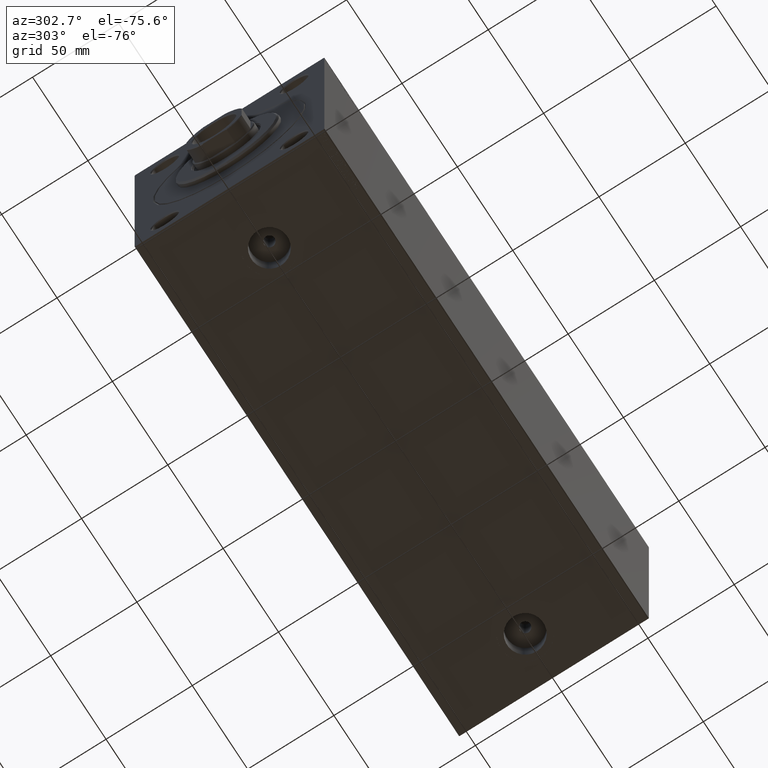
[diagram: clean part render]
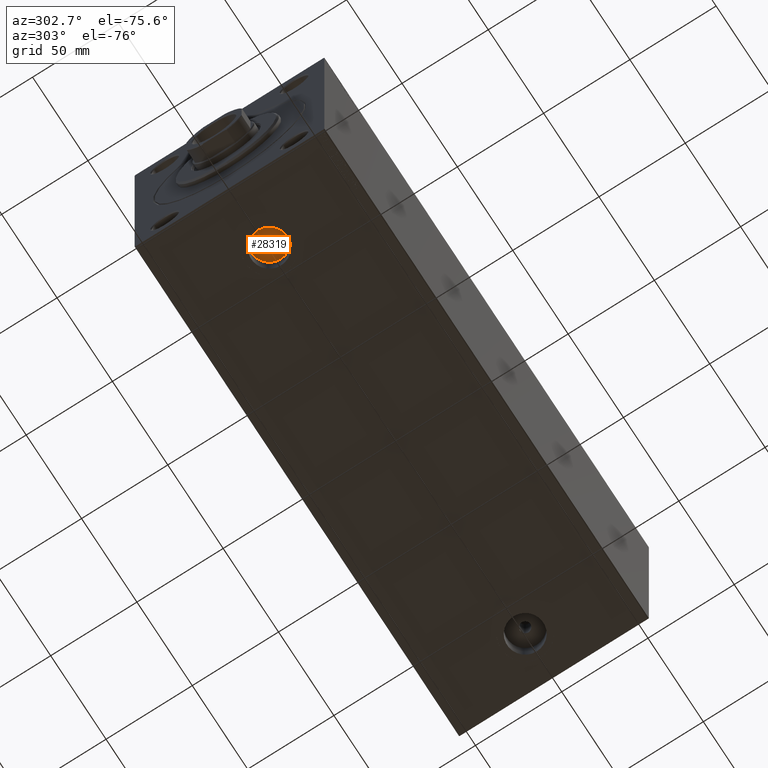
[diagram: same view with one face highlighted and labeled with its STEP entity id]
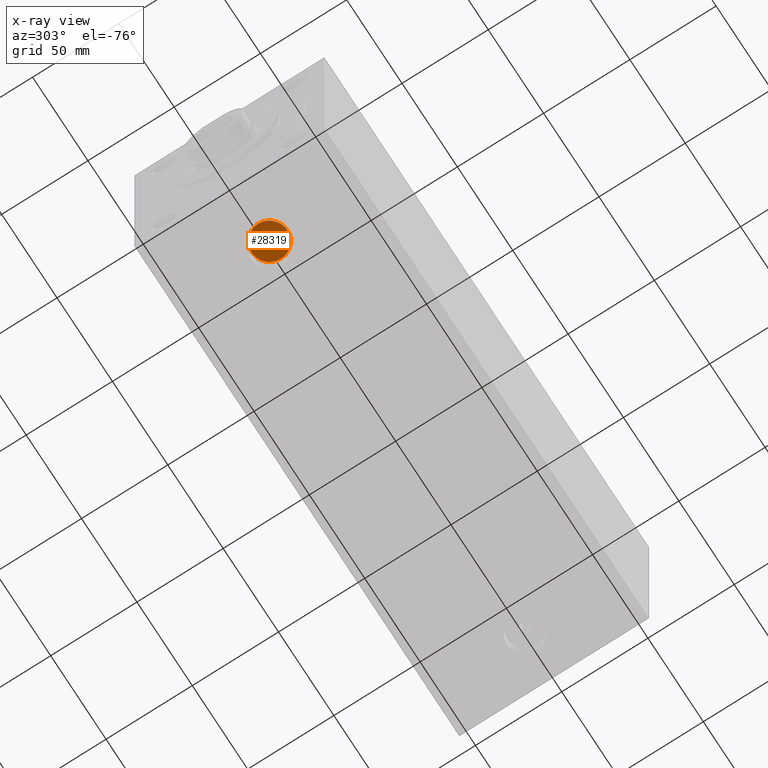
[diagram: x-ray of the same camera — body ghosted, the highlighted face saturated]
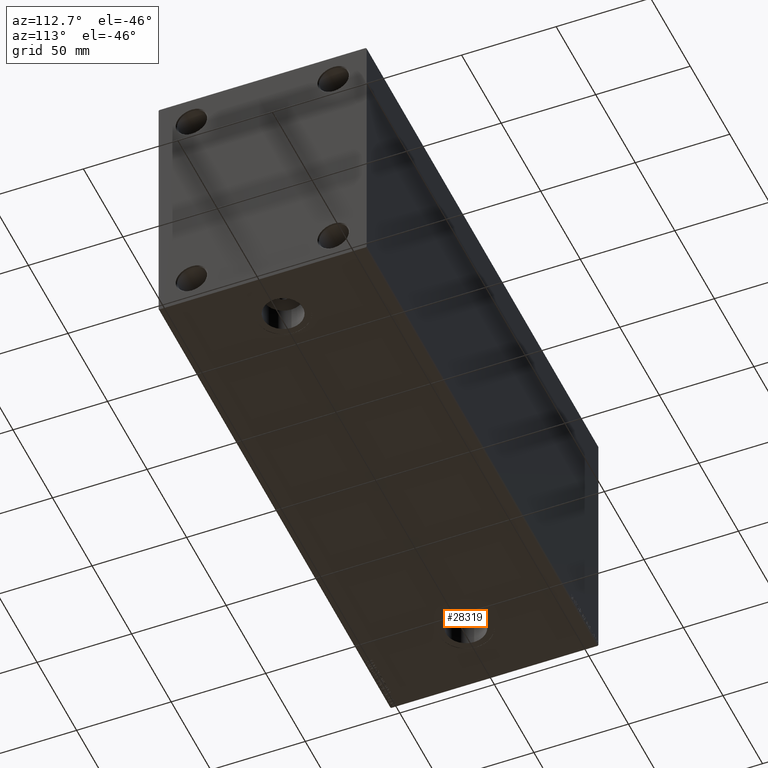
[diagram: same view with one face highlighted and labeled with its STEP entity id]
A machine part, auxiliary view. The second image highlights one B-rep face of the part: STEP entity #28319.
The next image is the same camera in x-ray: the body ghosted, the highlighted face saturated — about 0% of this face is hidden behind the body in this view.
A second angle (auxiliary view) of the same face is appended — the face is thin or edge-on in the first view.
In plain terms, the highlighted planar face has unit normal (0, 0, -1).
Its self-contained STEP definition (entity closure, byte-faithful):
#568 = CIRCLE ( 'NONE', #24152, 3.000000000000002665 ) ;
#1639 = EDGE_LOOP ( 'NONE', ( #31571, #15334 ) ) ;
#2374 = EDGE_CURVE ( 'NONE', #10228, #8421, #35223, .T. ) ;
#2824 = FACE_BOUND ( 'NONE', #1639, .T. ) ;
#2948 = DIRECTION ( 'NONE',  ( 0.000000000000000000, 0.000000000000000000, -1.000000000000000000 ) ) ;
#3735 = CARTESIAN_POINT ( 'NONE',  ( 36.00000000000000000, 4.206130763976431907E-15, -57.00000000000000000 ) ) ;
#4450 = DIRECTION ( 'NONE',  ( -1.000000000000000000, 0.000000000000000000, 0.000000000000000000 ) ) ;
#6748 = DIRECTION ( 'NONE',  ( 0.000000000000000000, 0.000000000000000000, -1.000000000000000000 ) ) ;
#8396 = VERTEX_POINT ( 'NONE', #12737 ) ;
#8421 = VERTEX_POINT ( 'NONE', #27082 ) ;
#10228 = VERTEX_POINT ( 'NONE', #42289 ) ;
#12389 = AXIS2_PLACEMENT_3D ( 'NONE', #20488, #2948, #17024 ) ;
#12737 = CARTESIAN_POINT ( 'NONE',  ( 39.00000000000000000, 4.573524803720637352E-15, -57.00000000000000000 ) ) ;
#12742 = PLANE ( 'NONE',  #14562 ) ;
#13524 = AXIS2_PLACEMENT_3D ( 'NONE', #21773, #39348, #4450 ) ;
#14095 = CARTESIAN_POINT ( 'NONE',  ( 32.99999999999999289, 4.206130763976431907E-15, -57.00000000000000000 ) ) ;
#14362 = DIRECTION ( 'NONE',  ( -1.000000000000000000, 0.000000000000000000, 0.000000000000000000 ) ) ;
#14562 = AXIS2_PLACEMENT_3D ( 'NONE', #3735, #17128, #27780 ) ;
#15334 = ORIENTED_EDGE ( 'NONE', *, *, #29285, .F. ) ;
#16904 = FACE_OUTER_BOUND ( 'NONE', #43477, .T. ) ;
#17024 = DIRECTION ( 'NONE',  ( -1.000000000000000000, 0.000000000000000000, 0.000000000000000000 ) ) ;
#17078 = ORIENTED_EDGE ( 'NONE', *, *, #2374, .T. ) ;
#17128 = DIRECTION ( 'NONE',  ( 0.000000000000000000, 0.000000000000000000, -1.000000000000000000 ) ) ;
#18221 = EDGE_CURVE ( 'NONE', #8421, #10228, #33450, .T. ) ;
#20464 = ORIENTED_EDGE ( 'NONE', *, *, #18221, .T. ) ;
#20488 = CARTESIAN_POINT ( 'NONE',  ( 36.00000000000000000, 4.206130763976431907E-15, -57.00000000000000000 ) ) ;
#21570 = DIRECTION ( 'NONE',  ( 0.000000000000000000, 0.000000000000000000, -1.000000000000000000 ) ) ;
#21773 = CARTESIAN_POINT ( 'NONE',  ( 36.00000000000000000, 4.206130763976431907E-15, -57.00000000000000000 ) ) ;
#24152 = AXIS2_PLACEMENT_3D ( 'NONE', #34928, #6748, #14362 ) ;
#24906 = AXIS2_PLACEMENT_3D ( 'NONE', #28076, #21570, #38904 ) ;
#27082 = CARTESIAN_POINT ( 'NONE',  ( 25.51999999999999602, 4.206130763976431907E-15, -57.00000000000000000 ) ) ;
#27780 = DIRECTION ( 'NONE',  ( -1.000000000000000000, 0.000000000000000000, -0.000000000000000000 ) ) ;
#28076 = CARTESIAN_POINT ( 'NONE',  ( 36.00000000000000000, 4.206130763976431907E-15, -57.00000000000000000 ) ) ;
#28319 = ADVANCED_FACE ( 'NONE', ( #2824, #16904 ), #12742, .T. ) ;
#29285 = EDGE_CURVE ( 'NONE', #8396, #34211, #568, .T. ) ;
#29381 = CIRCLE ( 'NONE', #12389, 3.000000000000002665 ) ;
#30741 = EDGE_CURVE ( 'NONE', #34211, #8396, #29381, .T. ) ;
#31571 = ORIENTED_EDGE ( 'NONE', *, *, #30741, .F. ) ;
#33450 = CIRCLE ( 'NONE', #13524, 10.48000000000000043 ) ;
#34211 = VERTEX_POINT ( 'NONE', #14095 ) ;
#34928 = CARTESIAN_POINT ( 'NONE',  ( 36.00000000000000000, 4.206130763976431907E-15, -57.00000000000000000 ) ) ;
#35223 = CIRCLE ( 'NONE', #24906, 10.48000000000000043 ) ;
#38904 = DIRECTION ( 'NONE',  ( -1.000000000000000000, 0.000000000000000000, 0.000000000000000000 ) ) ;
#39348 = DIRECTION ( 'NONE',  ( 0.000000000000000000, 0.000000000000000000, -1.000000000000000000 ) ) ;
#42289 = CARTESIAN_POINT ( 'NONE',  ( 46.47999999999999687, 5.489560609482857396E-15, -57.00000000000000000 ) ) ;
#43477 = EDGE_LOOP ( 'NONE', ( #20464, #17078 ) ) ;